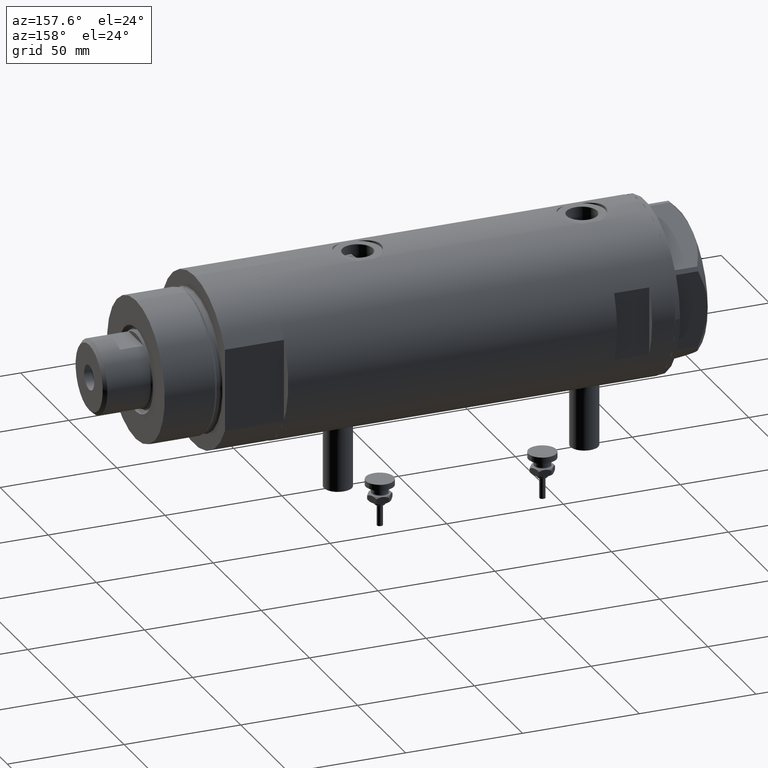
[diagram: clean part render]
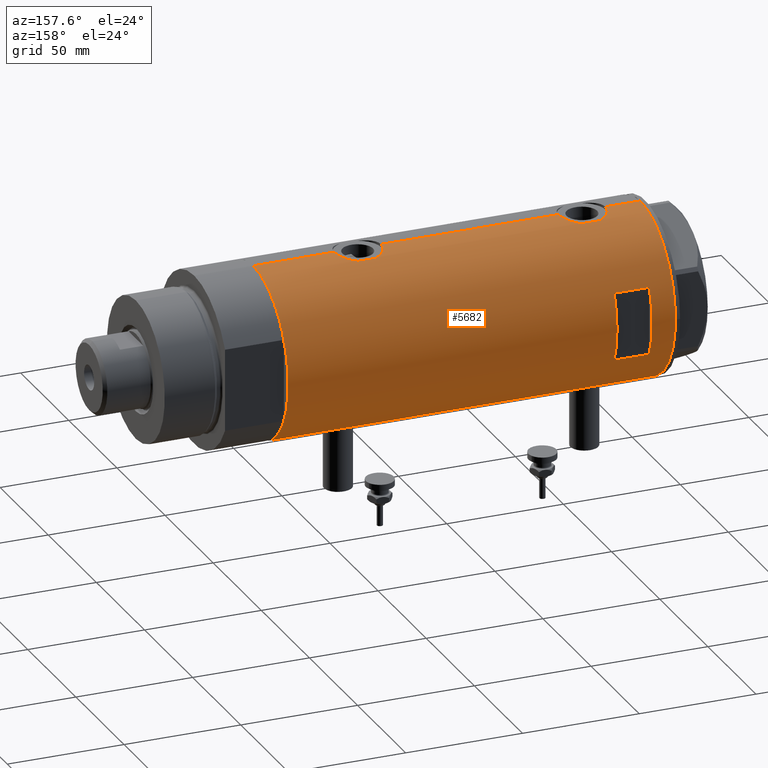
[diagram: same view with one face highlighted and labeled with its STEP entity id]
A machine part, auxiliary view. The second image highlights one B-rep face of the part: STEP entity #5682.
In plain terms, the highlighted cylindrical surface (partial cylindrical patch) has radius 36.5 mm, axis along (-1, -0, 0).
Its self-contained STEP definition (entity closure, byte-faithful):
#29 = CARTESIAN_POINT ( 'NONE',  ( -36.03936508729894683, 5.782103729777503531, 61.29870532603795397 ) ) ;
#34 = CARTESIAN_POINT ( 'NONE',  ( 35.52347503888660185, 8.410566959990466884, -32.60046032740658006 ) ) ;
#76 = CARTESIAN_POINT ( 'NONE',  ( 36.45853166336078743, 1.985123042546143690, -47.95162670417735740 ) ) ;
#102 = CARTESIAN_POINT ( 'NONE',  ( 35.52737867031126484, 8.373910777960910323, 52.41139643282934202 ) ) ;
#142 = CARTESIAN_POINT ( 'NONE',  ( 36.50000000000000000, 0.000000000000000000, -48.10000000000000142 ) ) ;
#158 = EDGE_CURVE ( 'NONE', #1957, #2708, #5672, .T. ) ;
#197 = CARTESIAN_POINT ( 'NONE',  ( -36.19624103943463211, 4.708090268046854376, -42.46938778553861482 ) ) ;
#199 = VECTOR ( 'NONE', #1846, 1000.000000000000000 ) ;
#256 = CARTESIAN_POINT ( 'NONE',  ( -35.96094343308264740, 6.249843792257639308, -46.18912889655430121 ) ) ;
#257 = EDGE_CURVE ( 'NONE', #1483, #1901, #448, .T. ) ;
#271 = CARTESIAN_POINT ( 'NONE',  ( 35.93435287561198521, 6.411571491280764867, 65.58988644922843037 ) ) ;
#278 = CARTESIAN_POINT ( 'NONE',  ( 36.18948008481302026, 4.772042575486204363, -46.90177631243157919 ) ) ;
#281 = CARTESIAN_POINT ( 'NONE',  ( -36.01679413914727235, 5.919813138266332153, -44.58500308952962143 ) ) ;
#299 = CARTESIAN_POINT ( 'NONE',  ( 36.50000000000000000, 4.344604608721388599E-19, 67.90000000000000568 ) ) ;
#333 = CARTESIAN_POINT ( 'NONE',  ( 36.45954139109321801, 1.735915671103596125, 67.75136781147011789 ) ) ;
#335 = VERTEX_POINT ( 'NONE', #4282 ) ;
#338 = CARTESIAN_POINT ( 'NONE',  ( -36.50000000000000000, 4.469960816887838430E-15, -82.90000000000000568 ) ) ;
#340 = VERTEX_POINT ( 'NONE', #563 ) ;
#370 = LINE ( 'NONE', #859, #3363 ) ;
#374 = LINE ( 'NONE', #4031, #1729 ) ;
#417 = CARTESIAN_POINT ( 'NONE',  ( -36.44628644024910358, 2.015372769639941275, 52.96971871986416858 ) ) ;
#447 = CARTESIAN_POINT ( 'NONE',  ( -36.35033317675380715, 3.306376218664574207, 53.59229280583950583 ) ) ;
#448 = LINE ( 'NONE', #5466, #199 ) ;
#451 = CARTESIAN_POINT ( 'NONE',  ( 36.40008489419980720, 2.709263960908029123, -28.47081895403607632 ) ) ;
#467 = CARTESIAN_POINT ( 'NONE',  ( 36.50000000000000000, 0.000000000000000000, -82.90000000000000568 ) ) ;
#513 = EDGE_CURVE ( 'NONE', #5795, #2956, #4915, .T. ) ;
#529 = CARTESIAN_POINT ( 'NONE',  ( 36.29420020483470921, 3.877527130731371230, 48.67901025599706344 ) ) ;
#563 = CARTESIAN_POINT ( 'NONE',  ( 36.50000000000000000, 4.344604608721388599E-19, 67.90000000000000568 ) ) ;
#607 = CARTESIAN_POINT ( 'NONE',  ( 35.29999999999999716, 9.282241108697837362, -34.37978495245235422 ) ) ;
#620 = CARTESIAN_POINT ( 'NONE',  ( 36.50000000000000000, 0.000000000000000000, 47.89999999999999858 ) ) ;
#641 = EDGE_CURVE ( 'NONE', #3551, #2708, #374, .T. ) ;
#682 = CARTESIAN_POINT ( 'NONE',  ( -36.40902375114222167, 2.582415566883932811, -52.29521691469690836 ) ) ;
#715 = CARTESIAN_POINT ( 'NONE',  ( -36.50000000000000000, 7.463603853851042361E-16, -40.34999999999999432 ) ) ;
#724 = LINE ( 'NONE', #2543, #5213 ) ;
#733 = CARTESIAN_POINT ( 'NONE',  ( 35.29999999999999716, 9.282241108697837362, 54.17978495245235138 ) ) ;
#743 = CARTESIAN_POINT ( 'NONE',  ( -36.39522946636255085, 2.769519034821246617, -52.20663923731272860 ) ) ;
#754 = CARTESIAN_POINT ( 'NONE',  ( 0.000000000000000000, 0.000000000000000000, 82.90000000000000568 ) ) ;
#764 = CARTESIAN_POINT ( 'NONE',  ( 36.00287854058830561, 6.017835360303004144, -46.10188117181726142 ) ) ;
#767 = CARTESIAN_POINT ( 'NONE',  ( -36.49292802938587243, 0.8230716655928884684, -52.80906938753516044 ) ) ;
#789 = DIRECTION ( 'NONE',  ( -0.000000000000000000, -0.000000000000000000, -1.000000000000000000 ) ) ;
#791 = VECTOR ( 'NONE', #5295, 1000.000000000000000 ) ;
#795 = EDGE_CURVE ( 'NONE', #4772, #1901, #3275, .T. ) ;
#810 = DIRECTION ( 'NONE',  ( 0.000000000000000000, 0.000000000000000000, 1.000000000000000000 ) ) ;
#839 = EDGE_CURVE ( 'NONE', #5311, #335, #3764, .T. ) ;
#859 = CARTESIAN_POINT ( 'NONE',  ( 36.50000000000000000, 0.000000000000000000, -82.90000000000000568 ) ) ;
#867 = CARTESIAN_POINT ( 'NONE',  ( -36.11199073531170001, 5.309184630646985426, 62.20412840766834250 ) ) ;
#903 = CARTESIAN_POINT ( 'NONE',  ( -36.47290054070997911, 1.420408912806971014, 64.98986981660013384 ) ) ;
#905 = CIRCLE ( 'NONE', #1197, 36.50000000000000000 ) ;
#933 = CARTESIAN_POINT ( 'NONE',  ( -36.50000000000000000, 0.4137727629436733778, 65.15000000000000568 ) ) ;
#938 = CARTESIAN_POINT ( 'NONE',  ( 36.48988646280794512, 0.9921857666168116818, -28.13671884865573602 ) ) ;
#948 = ORIENTED_EDGE ( 'NONE', *, *, #5133, .F. ) ;
#959 = CARTESIAN_POINT ( 'NONE',  ( -36.01524716445113228, 5.931039972055507370, 56.88669268135342350 ) ) ;
#985 = CARTESIAN_POINT ( 'NONE',  ( 35.34894515018993388, 9.096104616284849342, 53.71535916533458987 ) ) ;
#992 = CARTESIAN_POINT ( 'NONE',  ( -36.06690560274405044, 5.606949625760669242, 56.13114076041065914 ) ) ;
#1044 = CARTESIAN_POINT ( 'NONE',  ( 36.26917563968162739, 4.104523505324179311, 48.77784011632527239 ) ) ;
#1074 = CARTESIAN_POINT ( 'NONE',  ( 36.49999999999999289, 1.005842003469123558, 47.89999999999999147 ) ) ;
#1093 = AXIS2_PLACEMENT_3D ( 'NONE', #5160, #1115, #2923 ) ;
#1098 = CARTESIAN_POINT ( 'NONE',  ( -14.49137674618942917, 33.50000000000000000, 57.89999999999999147 ) ) ;
#1103 = CARTESIAN_POINT ( 'NONE',  ( 35.29999999999999716, 9.282241108697837362, -41.82021504754764862 ) ) ;
#1115 = DIRECTION ( 'NONE',  ( 0.000000000000000000, 0.000000000000000000, 1.000000000000000000 ) ) ;
#1142 = CARTESIAN_POINT ( 'NONE',  ( -35.96793274302673638, 6.210029014836893069, -45.78305762320682248 ) ) ;
#1157 = LINE ( 'NONE', #5724, #791 ) ;
#1158 = DIRECTION ( 'NONE',  ( 0.000000000000000000, 0.000000000000000000, 1.000000000000000000 ) ) ;
#1164 = CARTESIAN_POINT ( 'NONE',  ( 36.36225053217121683, 3.177096004138048713, -47.58516024475981965 ) ) ;
#1168 = VECTOR ( 'NONE', #1740, 1000.000000000000000 ) ;
#1197 = AXIS2_PLACEMENT_3D ( 'NONE', #2718, #4547, #2309 ) ;
#1246 = CARTESIAN_POINT ( 'NONE',  ( 36.29420020483470921, 3.877527130731371230, -47.32098974400295077 ) ) ;
#1276 = CIRCLE ( 'NONE', #1093, 36.50000000000000000 ) ;
#1296 = CARTESIAN_POINT ( 'NONE',  ( 36.34264078466109993, 3.418717136061407480, 67.31049034040752588 ) ) ;
#1319 = CARTESIAN_POINT ( 'NONE',  ( 36.50000000000000000, 4.344611676915099379E-19, -28.10000000000000142 ) ) ;
#1323 = CARTESIAN_POINT ( 'NONE',  ( 36.41717583764487642, 2.469534783404759182, 67.59348011175673321 ) ) ;
#1342 = CARTESIAN_POINT ( 'NONE',  ( -35.96805604460922012, 6.209309709790225007, 58.07887241731829420 ) ) ;
#1354 = CARTESIAN_POINT ( 'NONE',  ( -36.50000000000000000, 4.469960493366092827E-15, -52.85000000000000853 ) ) ;
#1372 = CARTESIAN_POINT ( 'NONE',  ( -36.36688032967139605, 3.133094607697478828, 64.32336432637509915 ) ) ;
#1377 = CARTESIAN_POINT ( 'NONE',  ( 36.45954139109321090, 1.735915671103594571, -28.24863218852990698 ) ) ;
#1408 = CARTESIAN_POINT ( 'NONE',  ( -36.26695135241003953, 4.128455078791303023, 54.18962408355263705 ) ) ;
#1445 = CARTESIAN_POINT ( 'NONE',  ( 14.49137674618942739, 33.50000000000000000, 72.89999999999999147 ) ) ;
#1483 = VERTEX_POINT ( 'NONE', #2941 ) ;
#1484 = VERTEX_POINT ( 'NONE', #3451 ) ;
#1488 = CARTESIAN_POINT ( 'NONE',  ( 36.18948008481302026, 4.772042575486204363, 49.09822368756843503 ) ) ;
#1506 = CARTESIAN_POINT ( 'NONE',  ( 35.39804469700246869, 8.909380959553008239, 62.55053164482843187 ) ) ;
#1516 = CARTESIAN_POINT ( 'NONE',  ( 36.45853166336078743, 1.985123042546143690, 48.04837329582261418 ) ) ;
#1542 = EDGE_LOOP ( 'NONE', ( #3852, #948, #2609, #3125 ) ) ;
#1548 = VECTOR ( 'NONE', #4242, 1000.000000000000000 ) ;
#1583 = CARTESIAN_POINT ( 'NONE',  ( -36.44628644024910358, 2.015372769639944828, -52.53028128013585984 ) ) ;
#1609 = CARTESIAN_POINT ( 'NONE',  ( -36.09617453667819831, 5.415318599347969553, -43.47293357327087193 ) ) ;
#1631 = CARTESIAN_POINT ( 'NONE',  ( -36.19597718496778782, 4.710322426433910081, -50.72851610762017316 ) ) ;
#1651 = EDGE_CURVE ( 'NONE', #4449, #1484, #3963, .T. ) ;
#1653 = CARTESIAN_POINT ( 'NONE',  ( -36.50000000000000000, 4.469960816887838430E-15, -82.90000000000000568 ) ) ;
#1690 = CARTESIAN_POINT ( 'NONE',  ( -36.49297130294515057, 0.8204796224394304005, -40.39068307782265066 ) ) ;
#1729 = VECTOR ( 'NONE', #2653, 1000.000000000000000 ) ;
#1740 = DIRECTION ( 'NONE',  ( 0.000000000000000000, 0.000000000000000000, 1.000000000000000000 ) ) ;
#1792 = CARTESIAN_POINT ( 'NONE',  ( -36.30200038006935159, 3.811959488093736415, 63.86972104836005570 ) ) ;
#1796 = CARTESIAN_POINT ( 'NONE',  ( 36.34264078466111414, 3.418717136061404815, -28.68950965959248123 ) ) ;
#1806 = FACE_OUTER_BOUND ( 'NONE', #5188, .T. ) ;
#1845 = CARTESIAN_POINT ( 'NONE',  ( -36.40902375114222167, 2.582415566883931479, 53.20478308530312006 ) ) ;
#1846 = DIRECTION ( 'NONE',  ( -0.000000000000000000, -0.000000000000000000, -1.000000000000000000 ) ) ;
#1848 = CIRCLE ( 'NONE', #5611, 36.50000000000000000 ) ;
#1850 = CARTESIAN_POINT ( 'NONE',  ( 35.72794581931695035, 7.469526493268208611, -31.44660203271737586 ) ) ;
#1869 = CARTESIAN_POINT ( 'NONE',  ( 36.13018480315371761, 5.199168368309162958, 49.34353501791949981 ) ) ;
#1887 = VERTEX_POINT ( 'NONE', #1098 ) ;
#1894 = CARTESIAN_POINT ( 'NONE',  ( 35.72860827204725354, 7.471059959301286746, 51.23474849525592134 ) ) ;
#1901 = VERTEX_POINT ( 'NONE', #733 ) ;
#1922 = EDGE_CURVE ( 'NONE', #2004, #3223, #5240, .T. ) ;
#1957 = VERTEX_POINT ( 'NONE', #4717 ) ;
#1990 = CARTESIAN_POINT ( 'NONE',  ( 36.50000000000000000, 4.344611676915099379E-19, -28.10000000000000142 ) ) ;
#2004 = VERTEX_POINT ( 'NONE', #1653 ) ;
#2011 = CARTESIAN_POINT ( 'NONE',  ( -36.11206433103227198, 5.308658295084047296, -49.90484648040978755 ) ) ;
#2040 = CARTESIAN_POINT ( 'NONE',  ( 35.34894515018993388, 9.096104616284849342, -42.28464083466543144 ) ) ;
#2043 = CARTESIAN_POINT ( 'NONE',  ( -36.46462099658057099, 1.618684470865508596, -40.55975602975155425 ) ) ;
#2046 = ORIENTED_EDGE ( 'NONE', *, *, #4855, .F. ) ;
#2049 = CARTESIAN_POINT ( 'NONE',  ( 14.49137674618942739, 33.50000000000000000, -82.90000000000000568 ) ) ;
#2068 = CARTESIAN_POINT ( 'NONE',  ( -35.99700617875954123, 6.038972911021593504, -44.97666814201680552 ) ) ;
#2072 = DIRECTION ( 'NONE',  ( -0.000000000000000000, -0.000000000000000000, -1.000000000000000000 ) ) ;
#2090 = B_SPLINE_CURVE_WITH_KNOTS ( 'NONE', 3,
 ( #4579, #933, #3135, #903, #4522, #3594, #3162, #4976, #1372, #1792, #2229, #3624, #3194, #867, #2774, #3648, #29, #3248, #5493, #4151, #5008, #5465, #2689, #1342, #5528, #959, #4183, #992, #5040, #5068, #2724, #4554, #1408, #4608, #447, #2807, #4641, #1845, #417, #3225, #3708, #4066, #2259 ),
 .UNSPECIFIED., .F., .F.,
 ( 4, 2, 2, 2, 2, 2, 2, 2, 1, 2, 2, 2, 2, 2, 2, 2, 2, 2, 2, 2, 2, 4 ),
 ( 2.134326792795658191E-19, 0.001223527801214134613, 0.001835291701821197691, 0.002447055602428260986, 0.003670583403642388443, 0.004894111204856515032, 0.006117639006070642489, 0.006729402906677714458, 0.007341166807284786426, 0.007952930707891856660, 0.008564694608498929496, 0.009788222409713092514, 0.01101175021092725553, 0.01223527801214141682, 0.01284704191274850180, 0.01345880581335558331, 0.01468233361456974632, 0.01590586141578391108, 0.01651762531639099432, 0.01712938921699807757, 0.01835291701821224059, 0.01957644481942640707 ),
 .UNSPECIFIED. ) ;
#2091 = CARTESIAN_POINT ( 'NONE',  ( -35.96088929326157313, 6.250155299092693184, -47.00610494763245129 ) ) ;
#2183 = DIRECTION ( 'NONE',  ( 1.000000000000000000, 0.000000000000000000, 0.000000000000000000 ) ) ;
#2198 = VECTOR ( 'NONE', #1158, 1000.000000000000000 ) ;
#2229 = CARTESIAN_POINT ( 'NONE',  ( -36.26643311080165688, 4.132772529026629726, 63.60619405269881099 ) ) ;
#2245 = ORIENTED_EDGE ( 'NONE', *, *, #3445, .F. ) ;
#2259 = CARTESIAN_POINT ( 'NONE',  ( -36.50000000000000000, 4.469960493369248271E-15, 52.65000000000001279 ) ) ;
#2309 = DIRECTION ( 'NONE',  ( 1.000000000000000000, 1.776356839400250465E-15, 0.000000000000000000 ) ) ;
#2310 = CARTESIAN_POINT ( 'NONE',  ( 35.79766710091576698, 7.135341284989892507, 50.87649479439096467 ) ) ;
#2343 = CARTESIAN_POINT ( 'NONE',  ( 36.49999999999999289, 1.005842003469123558, -48.09999999999999432 ) ) ;
#2344 = CARTESIAN_POINT ( 'NONE',  ( 35.29999999999999716, 9.282241108697837362, 54.17978495245235138 ) ) ;
#2403 = CARTESIAN_POINT ( 'NONE',  ( 36.50000000000000000, 0.000000000000000000, -82.90000000000000568 ) ) ;
#2425 = CARTESIAN_POINT ( 'NONE',  ( 35.69321149401850590, 7.633476302278302761, 64.36463072166442601 ) ) ;
#2463 = VERTEX_POINT ( 'NONE', #1319 ) ;
#2468 = EDGE_CURVE ( 'NONE', #3551, #1484, #2090, .T. ) ;
#2515 = B_SPLINE_CURVE_WITH_KNOTS ( 'NONE', 3,
 ( #715, #4763, #1690, #2534, #2043, #4305, #4335, #5275, #5737, #4365, #3012, #197, #3459, #2976, #1609, #4826, #5793, #281, #2068, #3429, #1142, #256, #2091, #3939, #3496, #2921, #3913, #3520, #5760, #2011, #3859, #1631, #5310, #5706, #4880, #4857, #743, #682, #1583, #2560, #767, #3403, #5340 ),
 .UNSPECIFIED., .F., .F.,
 ( 4, 2, 2, 2, 2, 2, 2, 2, 1, 2, 2, 2, 2, 2, 2, 2, 2, 2, 2, 2, 2, 4 ),
 ( 7.251201204191552072E-19, 0.001223527801214152827, 0.001835291701821226964, 0.002447055602428301752, 0.003670583403642443086, 0.004894111204856584421, 0.006117639006070725756, 0.006729402906677795122, 0.007341166807284864489, 0.007952930707891932988, 0.008564694608499004089, 0.009788222409713161903, 0.01101175021092732145, 0.01223527801214148100, 0.01284704191274855904, 0.01345880581335564055, 0.01468233361456980184, 0.01590586141578396312, 0.01651762531639104289, 0.01712938921699812267, 0.01835291701821228222, 0.01957644481942644524 ),
 .UNSPECIFIED. ) ;
#2534 = CARTESIAN_POINT ( 'NONE',  ( -36.47290054070997911, 1.420408912806975898, -40.51013018339984484 ) ) ;
#2543 = CARTESIAN_POINT ( 'NONE',  ( -14.49137674618942739, 33.50000000000000000, -82.90000000000000568 ) ) ;
#2550 = CARTESIAN_POINT ( 'NONE',  ( -36.50000000000000000, 4.469960816887838430E-15, -82.90000000000000568 ) ) ;
#2560 = CARTESIAN_POINT ( 'NONE',  ( -36.46598788992681506, 1.625721481788706013, -52.64872046713838216 ) ) ;
#2576 = LINE ( 'NONE', #4960, #4420 ) ;
#2579 = CARTESIAN_POINT ( 'NONE',  ( 35.40502660484482789, 8.876998817796915020, -42.73098724071236632 ) ) ;
#2609 = ORIENTED_EDGE ( 'NONE', *, *, #513, .F. ) ;
#2638 = CARTESIAN_POINT ( 'NONE',  ( 36.44688397185922213, 1.983417953489136965, 67.70449957648254724 ) ) ;
#2653 = DIRECTION ( 'NONE',  ( 0.000000000000000000, 0.000000000000000000, 1.000000000000000000 ) ) ;
#2663 = CARTESIAN_POINT ( 'NONE',  ( 35.83170458557579963, 6.955065627744201784, 65.08941671912468507 ) ) ;
#2689 = CARTESIAN_POINT ( 'NONE',  ( -35.96088929326158734, 6.250155299092678085, 58.49389505236757003 ) ) ;
#2697 = CARTESIAN_POINT ( 'NONE',  ( 36.00145998247696610, 6.026272765084661920, -30.10449611787613478 ) ) ;
#2708 = VERTEX_POINT ( 'NONE', #4198 ) ;
#2711 = B_SPLINE_CURVE_WITH_KNOTS ( 'NONE', 3,
 ( #2728, #3711, #34, #3253, #1850, #3685, #4560, #5104, #2697, #4648, #4072, #5927, #1796, #451, #4095, #5045, #1377, #938, #2753, #1990 ),
 .UNSPECIFIED., .F., .F.,
 ( 4, 2, 2, 2, 2, 2, 2, 2, 2, 4 ),
 ( 0.000000000000000000, 0.002977391289382820029, 0.003721739111728531758, 0.004466086934074251294, 0.005954782578765692100, 0.007443478223457132038, 0.008932173868148571977, 0.009676521690494288910, 0.01042086951284000758, 0.01190956515753144491 ),
 .UNSPECIFIED. ) ;
#2718 = CARTESIAN_POINT ( 'NONE',  ( 0.000000000000000000, 0.000000000000000000, 72.89999999999999147 ) ) ;
#2724 = CARTESIAN_POINT ( 'NONE',  ( -36.16083474549355259, 4.969527450313370842, 55.08794680877250016 ) ) ;
#2728 = CARTESIAN_POINT ( 'NONE',  ( 35.29999999999999716, 9.282241108697837362, -34.37978495245235422 ) ) ;
#2739 = CARTESIAN_POINT ( 'NONE',  ( -14.49137674618942739, 33.50000000000000000, 72.89999999999999147 ) ) ;
#2740 = ORIENTED_EDGE ( 'NONE', *, *, #3806, .F. ) ;
#2753 = CARTESIAN_POINT ( 'NONE',  ( 36.50000000000000000, 0.4961820988516186803, -28.10000000000000142 ) ) ;
#2774 = CARTESIAN_POINT ( 'NONE',  ( -36.09617453667821962, 5.415318599347956230, 62.02706642672912807 ) ) ;
#2807 = CARTESIAN_POINT ( 'NONE',  ( -36.36587679577596077, 3.131448301962862057, 53.48717534426381803 ) ) ;
#2854 = ORIENTED_EDGE ( 'NONE', *, *, #257, .T. ) ;
#2907 = CARTESIAN_POINT ( 'NONE',  ( 35.29999999999999716, 9.282241108697837362, 61.62021504754764578 ) ) ;
#2911 = ORIENTED_EDGE ( 'NONE', *, *, #839, .F. ) ;
#2921 = CARTESIAN_POINT ( 'NONE',  ( -36.01524716445113938, 5.931039972055519804, -48.61330731864658361 ) ) ;
#2923 = DIRECTION ( 'NONE',  ( 1.000000000000000000, 0.000000000000000000, 0.000000000000000000 ) ) ;
#2932 = ORIENTED_EDGE ( 'NONE', *, *, #3172, .T. ) ;
#2933 = EDGE_CURVE ( 'NONE', #2463, #4772, #370, .T. ) ;
#2941 = CARTESIAN_POINT ( 'NONE',  ( 35.29999999999999716, 9.282241108697837362, 61.62021504754764578 ) ) ;
#2956 = VERTEX_POINT ( 'NONE', #3150 ) ;
#2971 = CARTESIAN_POINT ( 'NONE',  ( 35.59366931936805400, 8.089554397885871495, -43.99927319087814936 ) ) ;
#2976 = CARTESIAN_POINT ( 'NONE',  ( -36.11199073531169290, 5.309184630646996972, -43.29587159233165039 ) ) ;
#3012 = CARTESIAN_POINT ( 'NONE',  ( -36.26643311080166399, 4.132772529026643049, -41.89380594730118190 ) ) ;
#3014 = ORIENTED_EDGE ( 'NONE', *, *, #4292, .T. ) ;
#3015 = ORIENTED_EDGE ( 'NONE', *, *, #158, .F. ) ;
#3027 = CARTESIAN_POINT ( 'NONE',  ( 36.48988646280793802, 0.9921857666168150125, 67.86328115134426753 ) ) ;
#3050 = CARTESIAN_POINT ( 'NONE',  ( -36.50000000000000000, 2.196845629780489385E-16, 65.15000000000000568 ) ) ;
#3060 = CARTESIAN_POINT ( 'NONE',  ( 36.13018480315371761, 5.199168368309162958, -46.65646498208050730 ) ) ;
#3068 = VECTOR ( 'NONE', #2072, 1000.000000000000000 ) ;
#3075 = DIRECTION ( 'NONE',  ( 0.000000000000000000, 4.625929269271492422E-15, 1.000000000000000000 ) ) ;
#3078 = DIRECTION ( 'NONE',  ( 1.000000000000000000, 0.000000000000000000, 0.000000000000000000 ) ) ;
#3125 = ORIENTED_EDGE ( 'NONE', *, *, #4659, .F. ) ;
#3135 = CARTESIAN_POINT ( 'NONE',  ( -36.49297130294515057, 0.8204796224394267368, 65.10931692217734224 ) ) ;
#3150 = CARTESIAN_POINT ( 'NONE',  ( 14.49137674618942917, 33.50000000000000000, 57.89999999999999147 ) ) ;
#3162 = CARTESIAN_POINT ( 'NONE',  ( -36.43371204571226230, 2.206934156026284732, 64.75097281670994676 ) ) ;
#3172 = EDGE_CURVE ( 'NONE', #5082, #5938, #2576, .T. ) ;
#3186 = ORIENTED_EDGE ( 'NONE', *, *, #5502, .F. ) ;
#3194 = CARTESIAN_POINT ( 'NONE',  ( -36.16126303108062956, 4.966520032693292563, 62.71641227745282521 ) ) ;
#3223 = VERTEX_POINT ( 'NONE', #1354 ) ;
#3225 = CARTESIAN_POINT ( 'NONE',  ( -36.46598788992681506, 1.625721481788708456, 52.85127953286164626 ) ) ;
#3242 = CARTESIAN_POINT ( 'NONE',  ( 35.93456089024233790, 6.410413305453381838, 50.20914036795854685 ) ) ;
#3248 = CARTESIAN_POINT ( 'NONE',  ( -36.01679413914727235, 5.919813138266318830, 60.91499691047037146 ) ) ;
#3253 = CARTESIAN_POINT ( 'NONE',  ( 35.69321149401852011, 7.633476302278306314, -31.63536927833558110 ) ) ;
#3275 = B_SPLINE_CURVE_WITH_KNOTS ( 'NONE', 3,
 ( #4206, #1074, #1516, #5157, #3729, #529, #1044, #1488, #1869, #5576, #3242, #2310, #1894, #3702, #102, #4633, #985, #2344 ),
 .UNSPECIFIED., .F., .F.,
 ( 4, 2, 2, 2, 2, 2, 2, 2, 4 ),
 ( 6.505213034913026604E-19, 0.002973648994175712851, 0.003717061242719640196, 0.004460473491263567541, 0.005947297988351423099, 0.007434122485439277790, 0.008920946982527131613, 0.01040777147961498630, 0.01189459597670284099 ),
 .UNSPECIFIED. ) ;
#3294 = ORIENTED_EDGE ( 'NONE', *, *, #1651, .T. ) ;
#3325 = CARTESIAN_POINT ( 'NONE',  ( 35.52347503888662317, 8.410566959990465108, 63.39953967259342704 ) ) ;
#3363 = VECTOR ( 'NONE', #4083, 1000.000000000000000 ) ;
#3403 = CARTESIAN_POINT ( 'NONE',  ( -36.50000000000000711, 0.4083036190459276016, -52.85000000000001563 ) ) ;
#3429 = CARTESIAN_POINT ( 'NONE',  ( -35.98846897517729815, 6.089479646546508640, -45.17765108453480849 ) ) ;
#3445 = EDGE_CURVE ( 'NONE', #340, #1957, #1157, .T. ) ;
#3451 = CARTESIAN_POINT ( 'NONE',  ( -36.50000000000000000, 4.469960493369248271E-15, 52.65000000000001279 ) ) ;
#3459 = CARTESIAN_POINT ( 'NONE',  ( -36.16126303108063667, 4.966520032693304998, -42.78358772254716058 ) ) ;
#3479 = CARTESIAN_POINT ( 'NONE',  ( 36.12877841835537396, 5.208882251161923271, 66.45053164790293465 ) ) ;
#3492 = CARTESIAN_POINT ( 'NONE',  ( 35.29999999999999716, 9.282241108697837362, -41.82021504754764862 ) ) ;
#3496 = CARTESIAN_POINT ( 'NONE',  ( -35.99530513653993324, 6.049346314076213815, -48.22332583035833409 ) ) ;
#3509 = CARTESIAN_POINT ( 'NONE',  ( 36.40008489419981430, 2.709263960908035784, 67.52918104596393789 ) ) ;
#3520 = CARTESIAN_POINT ( 'NONE',  ( -36.06690560274405044, 5.606949625760679901, -49.36885923958933375 ) ) ;
#3527 = DIRECTION ( 'NONE',  ( 0.000000000000000000, 1.000000000000000000, -4.562560375171875891E-15 ) ) ;
#3538 = EDGE_CURVE ( 'NONE', #1483, #340, #5308, .T. ) ;
#3551 = VERTEX_POINT ( 'NONE', #3050 ) ;
#3594 = CARTESIAN_POINT ( 'NONE',  ( -36.44504802628534890, 2.011764947064734077, 64.82093644908518115 ) ) ;
#3624 = CARTESIAN_POINT ( 'NONE',  ( -36.19624103943462501, 4.708090268046841942, 63.03061221446136386 ) ) ;
#3636 = B_SPLINE_CURVE_WITH_KNOTS ( 'NONE', 3,
 ( #142, #2343, #76, #1164, #5734, #1246, #4878, #278, #3060, #764, #3994, #4789, #3935, #2971, #5818, #2579, #2040, #3492 ),
 .UNSPECIFIED., .F., .F.,
 ( 4, 2, 2, 2, 2, 2, 2, 2, 4 ),
 ( 6.505213034913026604E-19, 0.002973648994175712851, 0.003717061242719640196, 0.004460473491263567541, 0.005947297988351423099, 0.007434122485439277790, 0.008920946982527131613, 0.01040777147961498630, 0.01189459597670284099 ),
 .UNSPECIFIED. ) ;
#3637 = CYLINDRICAL_SURFACE ( 'NONE', #3967, 36.50000000000000000 ) ;
#3648 = CARTESIAN_POINT ( 'NONE',  ( -36.06675137892952421, 5.607935153446965693, 61.66681826008759515 ) ) ;
#3685 = CARTESIAN_POINT ( 'NONE',  ( 35.79715675463676661, 7.130463293899343746, -31.08444415894004109 ) ) ;
#3702 = CARTESIAN_POINT ( 'NONE',  ( 35.59366931936805400, 8.089554397885871495, 52.00072680912185774 ) ) ;
#3708 = CARTESIAN_POINT ( 'NONE',  ( -36.49292802938586533, 0.8230716655928878023, 52.69093061246486798 ) ) ;
#3711 = CARTESIAN_POINT ( 'NONE',  ( 35.39804469700248291, 8.909380959553011792, -33.44946835517156103 ) ) ;
#3729 = CARTESIAN_POINT ( 'NONE',  ( 36.34070350304396868, 3.414301401755547083, 48.49763782624093267 ) ) ;
#3764 = LINE ( 'NONE', #2403, #1548 ) ;
#3806 = EDGE_CURVE ( 'NONE', #5082, #2463, #2711, .T. ) ;
#3830 = ORIENTED_EDGE ( 'NONE', *, *, #2468, .F. ) ;
#3852 = ORIENTED_EDGE ( 'NONE', *, *, #4052, .F. ) ;
#3859 = CARTESIAN_POINT ( 'NONE',  ( -36.16083474549354548, 4.969527450313382388, -50.41205319122751405 ) ) ;
#3913 = CARTESIAN_POINT ( 'NONE',  ( -36.05296344941215381, 5.695624845616832133, -49.18154856536755659 ) ) ;
#3935 = CARTESIAN_POINT ( 'NONE',  ( 35.72860827204725354, 7.471059959301286746, -44.76525150474409998 ) ) ;
#3939 = CARTESIAN_POINT ( 'NONE',  ( -35.96805604460922012, 6.209309709790239218, -47.42112758268170580 ) ) ;
#3958 = CARTESIAN_POINT ( 'NONE',  ( 36.29611582693039651, 3.878758190381167648, 67.13044989099549298 ) ) ;
#3963 = LINE ( 'NONE', #338, #1168 ) ;
#3967 = AXIS2_PLACEMENT_3D ( 'NONE', #5482, #5362, #2183 ) ;
#3973 = CARTESIAN_POINT ( 'NONE',  ( -36.50000000000000000, 7.463603853851042361E-16, -40.34999999999999432 ) ) ;
#3994 = CARTESIAN_POINT ( 'NONE',  ( 35.93456089024233790, 6.410413305453381838, -45.79085963204146026 ) ) ;
#4031 = CARTESIAN_POINT ( 'NONE',  ( -36.50000000000000000, 4.469960816887838430E-15, -82.90000000000000568 ) ) ;
#4052 = EDGE_CURVE ( 'NONE', #1887, #5555, #724, .T. ) ;
#4066 = CARTESIAN_POINT ( 'NONE',  ( -36.50000000000001421, 0.4083036190459299886, 52.65000000000002700 ) ) ;
#4072 = CARTESIAN_POINT ( 'NONE',  ( 36.18937351723702989, 4.773052864917642246, -29.29864006881156513 ) ) ;
#4083 = DIRECTION ( 'NONE',  ( 0.000000000000000000, 0.000000000000000000, 1.000000000000000000 ) ) ;
#4095 = CARTESIAN_POINT ( 'NONE',  ( 36.41717583764485511, 2.469534783404757405, -28.40651988824328456 ) ) ;
#4151 = CARTESIAN_POINT ( 'NONE',  ( -35.98846897517730525, 6.089479646546494429, 60.32234891546520572 ) ) ;
#4183 = CARTESIAN_POINT ( 'NONE',  ( -36.05296344941216091, 5.695624845616822363, 56.31845143463244341 ) ) ;
#4198 = CARTESIAN_POINT ( 'NONE',  ( -36.50000000000000000, 4.469960816887838430E-15, 82.90000000000000568 ) ) ;
#4206 = CARTESIAN_POINT ( 'NONE',  ( 36.50000000000000000, 0.000000000000000000, 47.89999999999999858 ) ) ;
#4210 = ORIENTED_EDGE ( 'NONE', *, *, #641, .T. ) ;
#4242 = DIRECTION ( 'NONE',  ( 0.000000000000000000, 0.000000000000000000, 1.000000000000000000 ) ) ;
#4282 = CARTESIAN_POINT ( 'NONE',  ( 36.50000000000000000, 0.000000000000000000, -48.10000000000000142 ) ) ;
#4292 = EDGE_CURVE ( 'NONE', #5311, #2004, #1276, .T. ) ;
#4293 = CARTESIAN_POINT ( 'NONE',  ( 35.79715675463678082, 7.130463293899336641, 64.91555584105995536 ) ) ;
#4305 = CARTESIAN_POINT ( 'NONE',  ( -36.44504802628535600, 2.011764947064739406, -40.67906355091481174 ) ) ;
#4335 = CARTESIAN_POINT ( 'NONE',  ( -36.43371204571226940, 2.206934156026296723, -40.74902718329001772 ) ) ;
#4365 = CARTESIAN_POINT ( 'NONE',  ( -36.30200038006934449, 3.811959488093747961, -41.63027895163993009 ) ) ;
#4372 = DIRECTION ( 'NONE',  ( 0.000000000000000000, 0.000000000000000000, 1.000000000000000000 ) ) ;
#4405 = CARTESIAN_POINT ( 'NONE',  ( 36.49999999999999289, 0.4961820988516169595, 67.89999999999997726 ) ) ;
#4420 = VECTOR ( 'NONE', #789, 1000.000000000000000 ) ;
#4449 = VERTEX_POINT ( 'NONE', #3973 ) ;
#4510 = ORIENTED_EDGE ( 'NONE', *, *, #795, .F. ) ;
#4522 = CARTESIAN_POINT ( 'NONE',  ( -36.46462099658055678, 1.618684470865503489, 64.94024397024845996 ) ) ;
#4547 = DIRECTION ( 'NONE',  ( -0.000000000000000000, -0.000000000000000000, -1.000000000000000000 ) ) ;
#4554 = CARTESIAN_POINT ( 'NONE',  ( -36.19597718496778072, 4.710322426433902088, 54.77148389237986237 ) ) ;
#4560 = CARTESIAN_POINT ( 'NONE',  ( 35.83170458557578542, 6.955065627744200007, -30.91058328087535401 ) ) ;
#4579 = CARTESIAN_POINT ( 'NONE',  ( -36.50000000000000000, 2.196845629780489385E-16, 65.15000000000000568 ) ) ;
#4608 = CARTESIAN_POINT ( 'NONE',  ( -36.30181775639987762, 3.813582387016778430, 53.93163942425564983 ) ) ;
#4633 = CARTESIAN_POINT ( 'NONE',  ( 35.40502660484482789, 8.876998817796915020, 53.26901275928763368 ) ) ;
#4641 = CARTESIAN_POINT ( 'NONE',  ( -36.39522946636254375, 2.769519034821240844, 53.29336076268729272 ) ) ;
#4648 = CARTESIAN_POINT ( 'NONE',  ( 36.12877841835538106, 5.208882251161926824, -29.54946835209708667 ) ) ;
#4659 = EDGE_CURVE ( 'NONE', #5555, #5795, #905, .T. ) ;
#4717 = CARTESIAN_POINT ( 'NONE',  ( 36.50000000000000000, 0.000000000000000000, 82.90000000000000568 ) ) ;
#4751 = CARTESIAN_POINT ( 'NONE',  ( 35.72794581931695745, 7.469526493268204170, 64.55339796728263480 ) ) ;
#4763 = CARTESIAN_POINT ( 'NONE',  ( -36.50000000000000000, 0.4137727629436737109, -40.35000000000000142 ) ) ;
#4772 = VERTEX_POINT ( 'NONE', #620 ) ;
#4789 = CARTESIAN_POINT ( 'NONE',  ( 35.79766710091576698, 7.135341284989892507, -45.12350520560902822 ) ) ;
#4803 = ORIENTED_EDGE ( 'NONE', *, *, #2933, .F. ) ;
#4808 = AXIS2_PLACEMENT_3D ( 'NONE', #754, #810, #3078 ) ;
#4826 = CARTESIAN_POINT ( 'NONE',  ( -36.06675137892952421, 5.607935153446982568, -43.83318173991241906 ) ) ;
#4855 = EDGE_CURVE ( 'NONE', #335, #5938, #3636, .T. ) ;
#4857 = CARTESIAN_POINT ( 'NONE',  ( -36.36587679577596077, 3.131448301962866054, -52.01282465573622460 ) ) ;
#4878 = CARTESIAN_POINT ( 'NONE',  ( 36.26917563968162739, 4.104523505324179311, -47.22215988367477024 ) ) ;
#4880 = CARTESIAN_POINT ( 'NONE',  ( -36.35033317675381426, 3.306376218664579536, -51.90770719416052970 ) ) ;
#4915 = LINE ( 'NONE', #2049, #3068 ) ;
#4918 = CARTESIAN_POINT ( 'NONE',  ( 0.000000000000000000, 0.000000000000000000, 57.90000000000014779 ) ) ;
#4960 = CARTESIAN_POINT ( 'NONE',  ( 35.29999999999999716, 9.282241108697837362, -82.90000000000000568 ) ) ;
#4976 = CARTESIAN_POINT ( 'NONE',  ( -36.39638105034455862, 2.774378062517167454, 64.51543332699104383 ) ) ;
#5008 = CARTESIAN_POINT ( 'NONE',  ( -35.96793274302675769, 6.210029014836877970, 59.71694237679319173 ) ) ;
#5040 = CARTESIAN_POINT ( 'NONE',  ( -36.09643313249889474, 5.413601294342269554, 55.76992226608147973 ) ) ;
#5045 = CARTESIAN_POINT ( 'NONE',  ( 36.44688397185921502, 1.983417953489134744, -28.29550042351748829 ) ) ;
#5068 = CARTESIAN_POINT ( 'NONE',  ( -36.11206433103227909, 5.308658295084034862, 55.59515351959023377 ) ) ;
#5082 = VERTEX_POINT ( 'NONE', #607 ) ;
#5104 = CARTESIAN_POINT ( 'NONE',  ( 35.93435287561198521, 6.411571491280768420, -30.41011355077158029 ) ) ;
#5133 = EDGE_CURVE ( 'NONE', #2956, #1887, #1848, .T. ) ;
#5157 = CARTESIAN_POINT ( 'NONE',  ( 36.36225053217121683, 3.177096004138048713, 48.41483975524019456 ) ) ;
#5160 = CARTESIAN_POINT ( 'NONE',  ( 0.000000000000000000, 0.000000000000000000, -82.90000000000000568 ) ) ;
#5188 = EDGE_LOOP ( 'NONE', ( #3014, #5478, #3186, #3294, #3830, #4210, #3015, #2245, #5628, #2854, #4510, #4803, #2740, #2932, #2046, #2911 ) ) ;
#5213 = VECTOR ( 'NONE', #4372, 1000.000000000000000 ) ;
#5240 = LINE ( 'NONE', #2550, #2198 ) ;
#5275 = CARTESIAN_POINT ( 'NONE',  ( -36.39638105034455151, 2.774378062517180332, -40.98456667300897749 ) ) ;
#5295 = DIRECTION ( 'NONE',  ( 0.000000000000000000, 0.000000000000000000, 1.000000000000000000 ) ) ;
#5308 = B_SPLINE_CURVE_WITH_KNOTS ( 'NONE', 3,
 ( #2907, #1506, #3325, #2425, #4751, #4293, #2663, #271, #5809, #3479, #5836, #3958, #1296, #3509, #1323, #2638, #333, #3027, #4405, #299 ),
 .UNSPECIFIED., .F., .F.,
 ( 4, 2, 2, 2, 2, 2, 2, 2, 2, 4 ),
 ( 0.000000000000000000, 0.002977391289382842147, 0.003721739111728546070, 0.004466086934074248692, 0.005954782578765684294, 0.007443478223457119895, 0.008932173868148556364, 0.009676521690494280237, 0.01042086951284000584, 0.01190956515753144838 ),
 .UNSPECIFIED. ) ;
#5310 = CARTESIAN_POINT ( 'NONE',  ( -36.26695135241004664, 4.128455078791307464, -51.31037591644739848 ) ) ;
#5311 = VERTEX_POINT ( 'NONE', #467 ) ;
#5340 = CARTESIAN_POINT ( 'NONE',  ( -36.50000000000000000, 4.469960493366092827E-15, -52.85000000000000853 ) ) ;
#5362 = DIRECTION ( 'NONE',  ( 0.000000000000000000, 0.000000000000000000, 1.000000000000000000 ) ) ;
#5465 = CARTESIAN_POINT ( 'NONE',  ( -35.96094343308265451, 6.249843792257625097, 59.31087110344572011 ) ) ;
#5466 = CARTESIAN_POINT ( 'NONE',  ( 35.29999999999999716, 9.282241108697837362, -82.90000000000000568 ) ) ;
#5478 = ORIENTED_EDGE ( 'NONE', *, *, #1922, .T. ) ;
#5482 = CARTESIAN_POINT ( 'NONE',  ( 0.000000000000000000, 0.000000000000000000, -82.90000000000000568 ) ) ;
#5493 = CARTESIAN_POINT ( 'NONE',  ( -35.99700617875953412, 6.038972911021577517, 60.52333185798319448 ) ) ;
#5502 = EDGE_CURVE ( 'NONE', #4449, #3223, #2515, .T. ) ;
#5528 = CARTESIAN_POINT ( 'NONE',  ( -35.99530513653992614, 6.049346314076198716, 57.27667416964168012 ) ) ;
#5555 = VERTEX_POINT ( 'NONE', #2739 ) ;
#5576 = CARTESIAN_POINT ( 'NONE',  ( 36.00287854058830561, 6.017835360303004144, 49.89811882818275990 ) ) ;
#5611 = AXIS2_PLACEMENT_3D ( 'NONE', #4918, #3075, #3527 ) ;
#5628 = ORIENTED_EDGE ( 'NONE', *, *, #3538, .F. ) ;
#5672 = CIRCLE ( 'NONE', #4808, 36.50000000000000000 ) ;
#5682 = ADVANCED_FACE ( 'NONE', ( #5934, #1806 ), #3637, .T. ) ;
#5706 = CARTESIAN_POINT ( 'NONE',  ( -36.30181775639988473, 3.813582387016784203, -51.56836057574439280 ) ) ;
#5724 = CARTESIAN_POINT ( 'NONE',  ( 36.50000000000000000, 0.000000000000000000, -82.90000000000000568 ) ) ;
#5734 = CARTESIAN_POINT ( 'NONE',  ( 36.34070350304396868, 3.414301401755547083, -47.50236217375907444 ) ) ;
#5737 = CARTESIAN_POINT ( 'NONE',  ( -36.36688032967139605, 3.133094607697487266, -41.17663567362491506 ) ) ;
#5760 = CARTESIAN_POINT ( 'NONE',  ( -36.09643313249890895, 5.413601294342283765, -49.73007773391854869 ) ) ;
#5793 = CARTESIAN_POINT ( 'NONE',  ( -36.03936508729894683, 5.782103729777510637, -44.20129467396203893 ) ) ;
#5795 = VERTEX_POINT ( 'NONE', #1445 ) ;
#5809 = CARTESIAN_POINT ( 'NONE',  ( 36.00145998247697321, 6.026272765084660143, 65.89550388212386167 ) ) ;
#5818 = CARTESIAN_POINT ( 'NONE',  ( 35.52737867031126484, 8.373910777960910323, -43.58860356717065798 ) ) ;
#5836 = CARTESIAN_POINT ( 'NONE',  ( 36.18937351723702989, 4.773052864917642246, 66.70135993118843487 ) ) ;
#5927 = CARTESIAN_POINT ( 'NONE',  ( 36.29611582693038940, 3.878758190381168092, -28.86955010900449992 ) ) ;
#5934 = FACE_BOUND ( 'NONE', #1542, .T. ) ;
#5938 = VERTEX_POINT ( 'NONE', #1103 ) ;